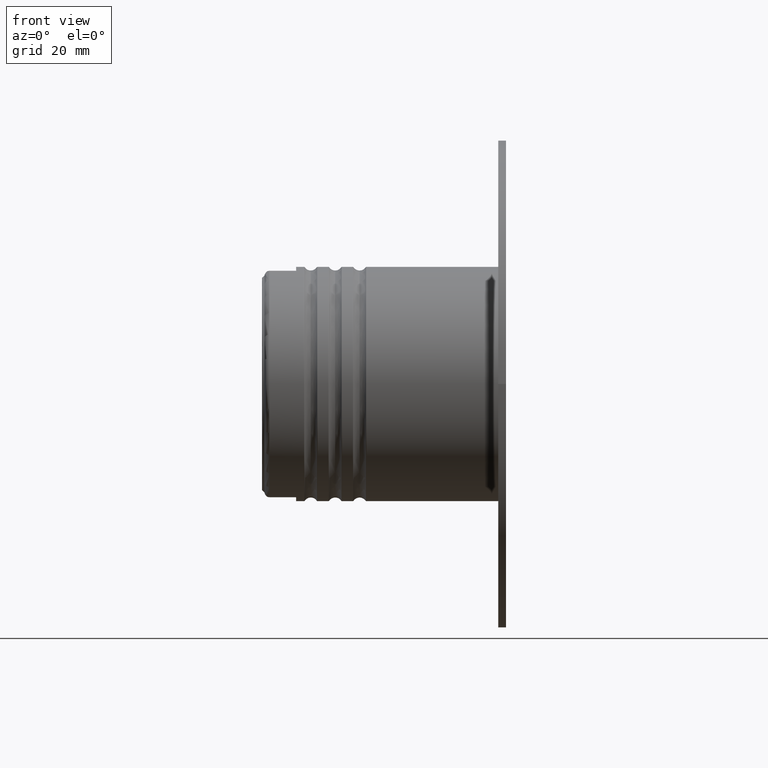
[diagram: clean part render]
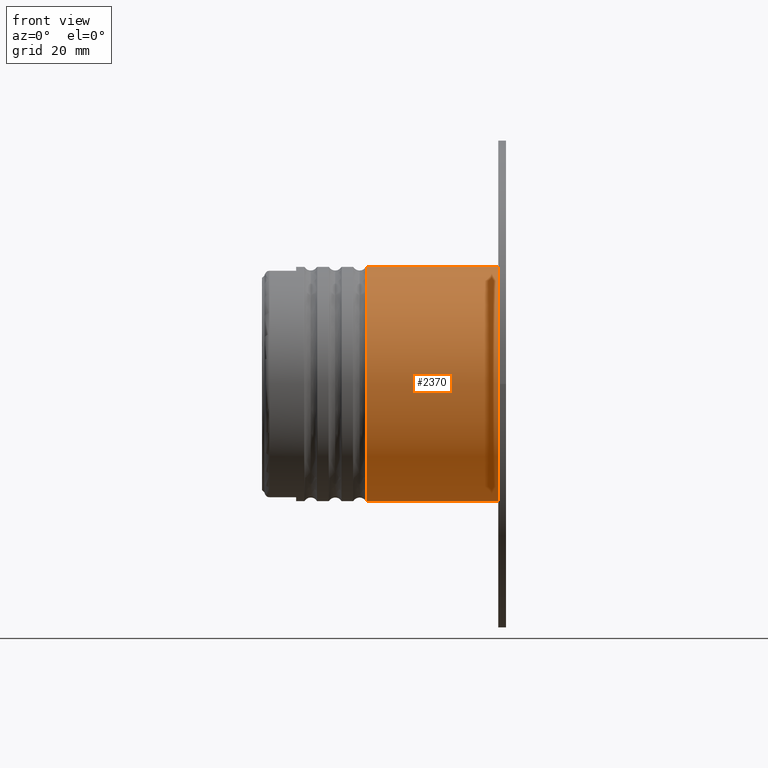
[diagram: same view with one face highlighted and labeled with its STEP entity id]
A machine part, front view. The second image highlights one B-rep face of the part: STEP entity #2370.
In plain terms, the highlighted cylindrical surface (partial cylindrical patch) has radius 24 mm, axis along (1, 0, 0).
Its self-contained STEP definition (entity closure, byte-faithful):
#2 = CARTESIAN_POINT ( 'NONE',  ( -1.399999999999999023, 2.939152317953647894E-15, 24.00000000000000000 ) ) ;
#94 = AXIS2_PLACEMENT_3D ( 'NONE', #629, #5111, #3918 ) ;
#147 = AXIS2_PLACEMENT_3D ( 'NONE', #3328, #2108, #4588 ) ;
#327 = CARTESIAN_POINT ( 'NONE',  ( 0.0000000000000000000, 0.0000000000000000000, -23.99999999999999289 ) ) ;
#426 = EDGE_CURVE ( 'NONE', #3270, #1394, #3696, .T. ) ;
#629 = CARTESIAN_POINT ( 'NONE',  ( -1.399999999999999023, 0.0000000000000000000, 0.0000000000000000000 ) ) ;
#1094 = ORIENTED_EDGE ( 'NONE', *, *, #426, .F. ) ;
#1344 = DIRECTION ( 'NONE',  ( 0.0000000000000000000, 0.0000000000000000000, 1.000000000000000000 ) ) ;
#1394 = VERTEX_POINT ( 'NONE', #3117 ) ;
#1645 = EDGE_CURVE ( 'NONE', #2818, #5097, #4481, .T. ) ;
#1791 = DIRECTION ( 'NONE',  ( -1.000000000000000000, -0.0000000000000000000, -0.0000000000000000000 ) ) ;
#1884 = CYLINDRICAL_SURFACE ( 'NONE', #147, 23.99999999999999289 ) ;
#2015 = FACE_OUTER_BOUND ( 'NONE', #3772, .T. ) ;
#2069 = VECTOR ( 'NONE', #2404, 1000.000000000000000 ) ;
#2108 = DIRECTION ( 'NONE',  ( 1.000000000000000000, -0.0000000000000000000, -0.0000000000000000000 ) ) ;
#2137 = LINE ( 'NONE', #4068, #4533 ) ;
#2320 = EDGE_CURVE ( 'NONE', #5097, #3270, #2137, .T. ) ;
#2370 = ADVANCED_FACE ( 'NONE', ( #2015 ), #1884, .T. ) ;
#2404 = DIRECTION ( 'NONE',  ( 1.000000000000000000, -0.0000000000000000000, -0.0000000000000000000 ) ) ;
#2428 = DIRECTION ( 'NONE',  ( 1.000000000000000000, -0.0000000000000000000, -0.0000000000000000000 ) ) ;
#2610 = CARTESIAN_POINT ( 'NONE',  ( -28.39016144201283964, 0.0000000000000000000, 0.0000000000000000000 ) ) ;
#2709 = ORIENTED_EDGE ( 'NONE', *, *, #1645, .F. ) ;
#2719 = LINE ( 'NONE', #327, #2069 ) ;
#2818 = VERTEX_POINT ( 'NONE', #4441 ) ;
#3117 = CARTESIAN_POINT ( 'NONE',  ( -1.399999999999999023, 0.0000000000000000000, -24.00000000000000000 ) ) ;
#3218 = CARTESIAN_POINT ( 'NONE',  ( -28.39016144201283964, 2.939152317953647106E-15, 23.99999999999999289 ) ) ;
#3270 = VERTEX_POINT ( 'NONE', #2 ) ;
#3328 = CARTESIAN_POINT ( 'NONE',  ( 0.0000000000000000000, 0.0000000000000000000, 0.0000000000000000000 ) ) ;
#3403 = ORIENTED_EDGE ( 'NONE', *, *, #3801, .T. ) ;
#3696 = CIRCLE ( 'NONE', #94, 24.00000000000000000 ) ;
#3772 = EDGE_LOOP ( 'NONE', ( #4248, #2709, #3403, #1094 ) ) ;
#3801 = EDGE_CURVE ( 'NONE', #2818, #1394, #2719, .T. ) ;
#3918 = DIRECTION ( 'NONE',  ( 0.0000000000000000000, 0.0000000000000000000, -1.000000000000000000 ) ) ;
#4068 = CARTESIAN_POINT ( 'NONE',  ( 0.0000000000000000000, 2.939152317953647106E-15, 23.99999999999999289 ) ) ;
#4248 = ORIENTED_EDGE ( 'NONE', *, *, #2320, .F. ) ;
#4441 = CARTESIAN_POINT ( 'NONE',  ( -28.39016144201283964, 0.0000000000000000000, -23.99999999999999289 ) ) ;
#4481 = CIRCLE ( 'NONE', #5230, 23.99999999999999289 ) ;
#4533 = VECTOR ( 'NONE', #2428, 1000.000000000000000 ) ;
#4588 = DIRECTION ( 'NONE',  ( 0.0000000000000000000, 0.0000000000000000000, -1.000000000000000000 ) ) ;
#5097 = VERTEX_POINT ( 'NONE', #3218 ) ;
#5111 = DIRECTION ( 'NONE',  ( 1.000000000000000000, -0.0000000000000000000, -0.0000000000000000000 ) ) ;
#5230 = AXIS2_PLACEMENT_3D ( 'NONE', #2610, #1791, #1344 ) ;